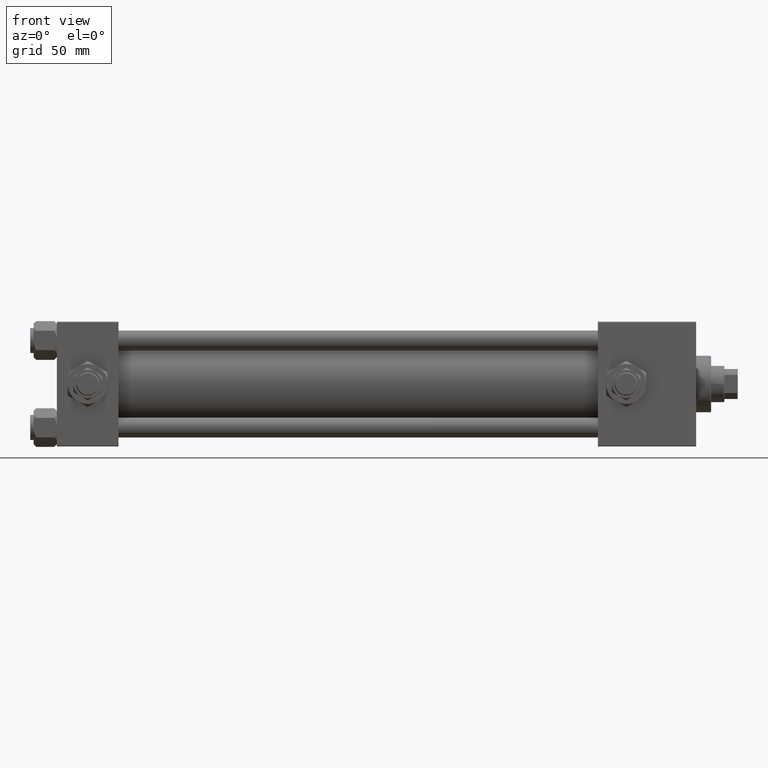
[diagram: clean part render]
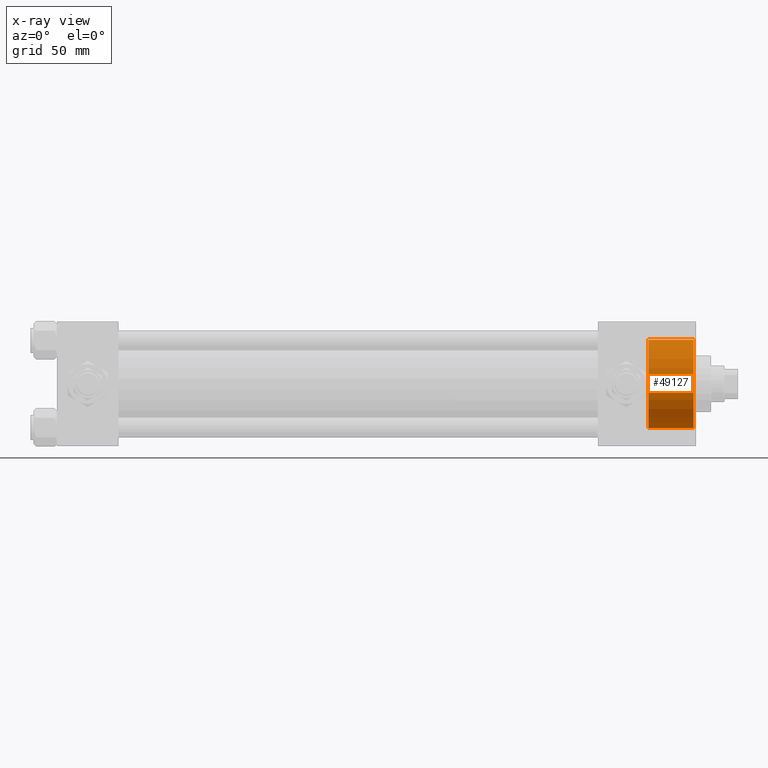
[diagram: x-ray — body ghosted, one internal face saturated and labeled with its STEP entity id]
A machine part, front view, then the same camera in x-ray: the body is ghosted and one INTERNAL B-rep face — a face not visible from any outside direction — is saturated and labeled: STEP entity #49127.
In plain terms, the highlighted cylindrical surface (partial cylindrical patch) has radius 26.5 mm, axis along (1, 0, 0).
Its self-contained STEP definition (entity closure, byte-faithful):
#1662 = CARTESIAN_POINT ( 'NONE',  ( 382.4999999999998863, 3.245314017740486554E-15, 26.50000000000000355 ) ) ;
#2245 = CARTESIAN_POINT ( 'NONE',  ( 355.2999999999999545, 0.000000000000000000, 0.000000000000000000 ) ) ;
#2431 = VERTEX_POINT ( 'NONE', #15036 ) ;
#3114 = LINE ( 'NONE', #31076, #15901 ) ;
#3947 = CARTESIAN_POINT ( 'NONE',  ( 382.4999999999998863, 0.000000000000000000, 0.000000000000000000 ) ) ;
#6420 = VERTEX_POINT ( 'NONE', #1662 ) ;
#6493 = CARTESIAN_POINT ( 'NONE',  ( 355.2999999999999545, 3.245314017740486554E-15, 26.50000000000000355 ) ) ;
#11925 = ORIENTED_EDGE ( 'NONE', *, *, #23492, .T. ) ;
#15036 = CARTESIAN_POINT ( 'NONE',  ( 355.2999999999999545, 0.000000000000000000, -26.50000000000000355 ) ) ;
#15901 = VECTOR ( 'NONE', #50349, 1000.000000000000000 ) ;
#16019 = DIRECTION ( 'NONE',  ( 0.000000000000000000, 0.000000000000000000, -1.000000000000000000 ) ) ;
#17698 = ORIENTED_EDGE ( 'NONE', *, *, #46880, .F. ) ;
#21962 = VECTOR ( 'NONE', #42199, 1000.000000000000000 ) ;
#23413 = FACE_OUTER_BOUND ( 'NONE', #48899, .T. ) ;
#23492 = EDGE_CURVE ( 'NONE', #6420, #26041, #34061, .T. ) ;
#23933 = CYLINDRICAL_SURFACE ( 'NONE', #26104, 26.50000000000000355 ) ;
#23941 = CARTESIAN_POINT ( 'NONE',  ( 382.4999999999998863, 0.000000000000000000, -26.50000000000000355 ) ) ;
#26041 = VERTEX_POINT ( 'NONE', #23941 ) ;
#26104 = AXIS2_PLACEMENT_3D ( 'NONE', #48215, #31328, #16019 ) ;
#26105 = LINE ( 'NONE', #29534, #21962 ) ;
#29534 = CARTESIAN_POINT ( 'NONE',  ( 355.2999999999999545, 3.245314017740486554E-15, 26.50000000000000355 ) ) ;
#30926 = CIRCLE ( 'NONE', #45286, 26.50000000000000355 ) ;
#31076 = CARTESIAN_POINT ( 'NONE',  ( 355.2999999999999545, 0.000000000000000000, -26.50000000000000355 ) ) ;
#31328 = DIRECTION ( 'NONE',  ( 1.000000000000000000, -0.000000000000000000, -0.000000000000000000 ) ) ;
#32915 = ORIENTED_EDGE ( 'NONE', *, *, #51146, .T. ) ;
#34061 = CIRCLE ( 'NONE', #40796, 26.50000000000000355 ) ;
#36897 = DIRECTION ( 'NONE',  ( 1.000000000000000000, 0.000000000000000000, 0.000000000000000000 ) ) ;
#38637 = DIRECTION ( 'NONE',  ( 1.000000000000000000, 0.000000000000000000, 0.000000000000000000 ) ) ;
#39126 = EDGE_CURVE ( 'NONE', #51451, #2431, #30926, .T. ) ;
#40796 = AXIS2_PLACEMENT_3D ( 'NONE', #3947, #36897, #48276 ) ;
#42199 = DIRECTION ( 'NONE',  ( 1.000000000000000000, -0.000000000000000000, -0.000000000000000000 ) ) ;
#43125 = DIRECTION ( 'NONE',  ( 0.000000000000000000, 0.000000000000000000, -1.000000000000000000 ) ) ;
#45286 = AXIS2_PLACEMENT_3D ( 'NONE', #2245, #38637, #43125 ) ;
#46880 = EDGE_CURVE ( 'NONE', #2431, #26041, #3114, .T. ) ;
#48215 = CARTESIAN_POINT ( 'NONE',  ( 355.2999999999999545, 0.000000000000000000, 0.000000000000000000 ) ) ;
#48276 = DIRECTION ( 'NONE',  ( 0.000000000000000000, 0.000000000000000000, 1.000000000000000000 ) ) ;
#48899 = EDGE_LOOP ( 'NONE', ( #51882, #32915, #11925, #17698 ) ) ;
#49127 = ADVANCED_FACE ( 'NONE', ( #23413 ), #23933, .F. ) ;
#50349 = DIRECTION ( 'NONE',  ( 1.000000000000000000, -0.000000000000000000, -0.000000000000000000 ) ) ;
#51146 = EDGE_CURVE ( 'NONE', #51451, #6420, #26105, .T. ) ;
#51451 = VERTEX_POINT ( 'NONE', #6493 ) ;
#51882 = ORIENTED_EDGE ( 'NONE', *, *, #39126, .F. ) ;